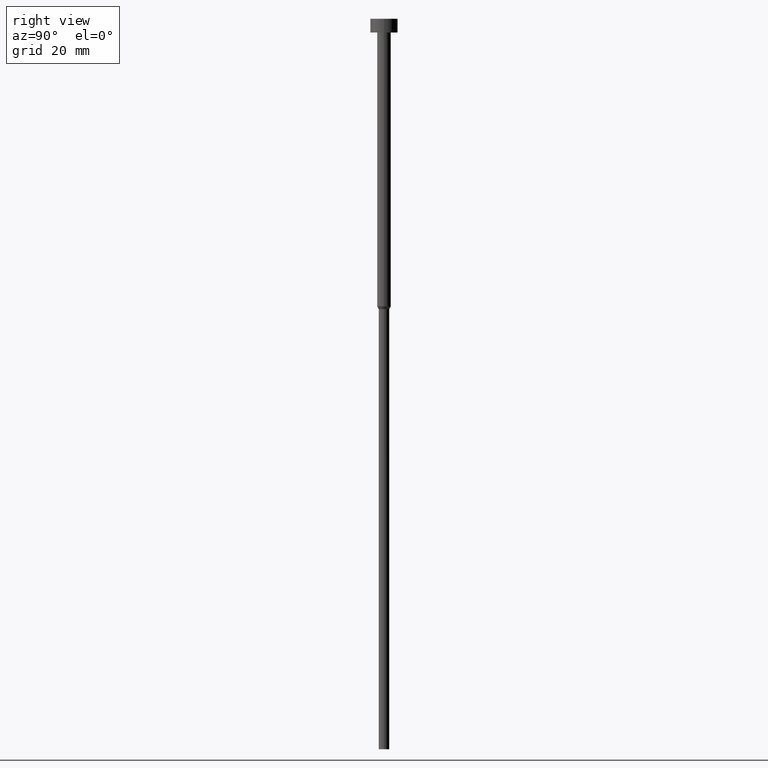
[diagram: clean part render]
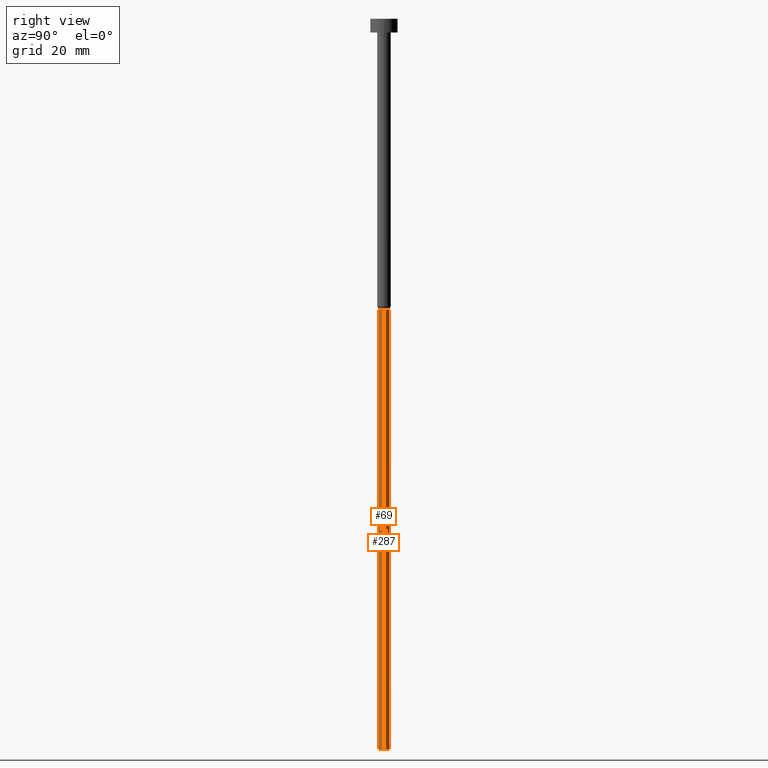
[diagram: same view with one multi-face feature highlighted, each face labeled with its STEP entity id]
A machine part, right view. The highlighted faces form ONE feature: a constant-radius fillet chain: 2 tangent blend faces with common blend radius 1.15 mm. The faces share edges in the B-rep.
Their STEP definitions:
[1] entity #69 (Cylinder):
#13 = CARTESIAN_POINT ( 'NONE',  ( 1.149999999999999911, 0.000000000000000000, -63.60621778264910375 ) ) ;
#28 = AXIS2_PLACEMENT_3D ( 'NONE', #97, #207, #41 ) ;
#32 = EDGE_CURVE ( 'NONE', #319, #272, #56, .T. ) ;
#36 = DIRECTION ( 'NONE',  ( -0.000000000000000000, -0.000000000000000000, 1.000000000000000000 ) ) ;
#41 = DIRECTION ( 'NONE',  ( 1.000000000000000000, 0.000000000000000000, 0.000000000000000000 ) ) ;
#51 = EDGE_LOOP ( 'NONE', ( #183, #303, #136, #263 ) ) ;
#56 = LINE ( 'NONE', #302, #60 ) ;
#59 = DIRECTION ( 'NONE',  ( -0.000000000000000000, -0.000000000000000000, 1.000000000000000000 ) ) ;
#60 = VECTOR ( 'NONE', #59, 1000.000000000000000 ) ;
#69 = ADVANCED_FACE ( 'NONE', ( #237 ), #120, .T. ) ;
#71 = DIRECTION ( 'NONE',  ( -0.000000000000000000, -0.000000000000000000, 1.000000000000000000 ) ) ;
#86 = VECTOR ( 'NONE', #101, 1000.000000000000000 ) ;
#94 = CARTESIAN_POINT ( 'NONE',  ( -1.149999999999999911, 1.408343819019456028E-16, -160.0000000000000000 ) ) ;
#97 = CARTESIAN_POINT ( 'NONE',  ( 0.000000000000000000, 0.000000000000000000, -160.0000000000000000 ) ) ;
#99 = DIRECTION ( 'NONE',  ( 1.000000000000000000, 0.000000000000000000, 0.000000000000000000 ) ) ;
#101 = DIRECTION ( 'NONE',  ( -0.000000000000000000, -0.000000000000000000, 1.000000000000000000 ) ) ;
#119 = AXIS2_PLACEMENT_3D ( 'NONE', #185, #71, #192 ) ;
#120 = CYLINDRICAL_SURFACE ( 'NONE', #168, 1.149999999999999911 ) ;
#136 = ORIENTED_EDGE ( 'NONE', *, *, #32, .T. ) ;
#155 = CARTESIAN_POINT ( 'NONE',  ( 1.149999999999999911, 0.000000000000000000, -160.0000000000000000 ) ) ;
#168 = AXIS2_PLACEMENT_3D ( 'NONE', #176, #36, #99 ) ;
#176 = CARTESIAN_POINT ( 'NONE',  ( 0.000000000000000000, 0.000000000000000000, 0.000000000000000000 ) ) ;
#183 = ORIENTED_EDGE ( 'NONE', *, *, #277, .F. ) ;
#185 = CARTESIAN_POINT ( 'NONE',  ( 0.000000000000000000, 0.000000000000000000, -63.60621778264910375 ) ) ;
#192 = DIRECTION ( 'NONE',  ( 1.000000000000000000, 0.000000000000000000, 0.000000000000000000 ) ) ;
#193 = VERTEX_POINT ( 'NONE', #94 ) ;
#201 = VERTEX_POINT ( 'NONE', #339 ) ;
#206 = CIRCLE ( 'NONE', #28, 1.149999999999999911 ) ;
#207 = DIRECTION ( 'NONE',  ( -0.000000000000000000, -0.000000000000000000, 1.000000000000000000 ) ) ;
#237 = FACE_OUTER_BOUND ( 'NONE', #51, .T. ) ;
#240 = EDGE_CURVE ( 'NONE', #193, #319, #206, .T. ) ;
#246 = CARTESIAN_POINT ( 'NONE',  ( -1.149999999999999911, 1.408343819019456028E-16, 0.000000000000000000 ) ) ;
#263 = ORIENTED_EDGE ( 'NONE', *, *, #304, .F. ) ;
#272 = VERTEX_POINT ( 'NONE', #13 ) ;
#277 = EDGE_CURVE ( 'NONE', #193, #201, #345, .T. ) ;
#279 = CIRCLE ( 'NONE', #119, 1.149999999999999911 ) ;
#302 = CARTESIAN_POINT ( 'NONE',  ( 1.149999999999999911, 0.000000000000000000, 0.000000000000000000 ) ) ;
#303 = ORIENTED_EDGE ( 'NONE', *, *, #240, .T. ) ;
#304 = EDGE_CURVE ( 'NONE', #201, #272, #279, .T. ) ;
#319 = VERTEX_POINT ( 'NONE', #155 ) ;
#339 = CARTESIAN_POINT ( 'NONE',  ( -1.149999999999999911, 1.408343819019456028E-16, -63.60621778264910375 ) ) ;
#345 = LINE ( 'NONE', #246, #86 ) ;
[2] entity #287 (Cylinder):
#7 = DIRECTION ( 'NONE',  ( -0.000000000000000000, -0.000000000000000000, 1.000000000000000000 ) ) ;
#9 = AXIS2_PLACEMENT_3D ( 'NONE', #25, #326, #198 ) ;
#13 = CARTESIAN_POINT ( 'NONE',  ( 1.149999999999999911, 0.000000000000000000, -63.60621778264910375 ) ) ;
#24 = EDGE_CURVE ( 'NONE', #319, #193, #273, .T. ) ;
#25 = CARTESIAN_POINT ( 'NONE',  ( 0.000000000000000000, 0.000000000000000000, -160.0000000000000000 ) ) ;
#31 = DIRECTION ( 'NONE',  ( 1.000000000000000000, 0.000000000000000000, 0.000000000000000000 ) ) ;
#32 = EDGE_CURVE ( 'NONE', #319, #272, #56, .T. ) ;
#46 = AXIS2_PLACEMENT_3D ( 'NONE', #103, #286, #288 ) ;
#56 = LINE ( 'NONE', #302, #60 ) ;
#59 = DIRECTION ( 'NONE',  ( -0.000000000000000000, -0.000000000000000000, 1.000000000000000000 ) ) ;
#60 = VECTOR ( 'NONE', #59, 1000.000000000000000 ) ;
#84 = ORIENTED_EDGE ( 'NONE', *, *, #32, .F. ) ;
#86 = VECTOR ( 'NONE', #101, 1000.000000000000000 ) ;
#94 = CARTESIAN_POINT ( 'NONE',  ( -1.149999999999999911, 1.408343819019456028E-16, -160.0000000000000000 ) ) ;
#101 = DIRECTION ( 'NONE',  ( -0.000000000000000000, -0.000000000000000000, 1.000000000000000000 ) ) ;
#103 = CARTESIAN_POINT ( 'NONE',  ( 0.000000000000000000, 0.000000000000000000, 0.000000000000000000 ) ) ;
#106 = EDGE_CURVE ( 'NONE', #272, #201, #337, .T. ) ;
#107 = CYLINDRICAL_SURFACE ( 'NONE', #46, 1.149999999999999911 ) ;
#133 = FACE_OUTER_BOUND ( 'NONE', #346, .T. ) ;
#155 = CARTESIAN_POINT ( 'NONE',  ( 1.149999999999999911, 0.000000000000000000, -160.0000000000000000 ) ) ;
#157 = ORIENTED_EDGE ( 'NONE', *, *, #277, .T. ) ;
#193 = VERTEX_POINT ( 'NONE', #94 ) ;
#198 = DIRECTION ( 'NONE',  ( 1.000000000000000000, 0.000000000000000000, 0.000000000000000000 ) ) ;
#201 = VERTEX_POINT ( 'NONE', #339 ) ;
#202 = CARTESIAN_POINT ( 'NONE',  ( 0.000000000000000000, 0.000000000000000000, -63.60621778264910375 ) ) ;
#214 = ORIENTED_EDGE ( 'NONE', *, *, #106, .F. ) ;
#218 = ORIENTED_EDGE ( 'NONE', *, *, #24, .T. ) ;
#246 = CARTESIAN_POINT ( 'NONE',  ( -1.149999999999999911, 1.408343819019456028E-16, 0.000000000000000000 ) ) ;
#272 = VERTEX_POINT ( 'NONE', #13 ) ;
#273 = CIRCLE ( 'NONE', #9, 1.149999999999999911 ) ;
#277 = EDGE_CURVE ( 'NONE', #193, #201, #345, .T. ) ;
#286 = DIRECTION ( 'NONE',  ( -0.000000000000000000, -0.000000000000000000, 1.000000000000000000 ) ) ;
#287 = ADVANCED_FACE ( 'NONE', ( #133 ), #107, .T. ) ;
#288 = DIRECTION ( 'NONE',  ( 1.000000000000000000, 0.000000000000000000, 0.000000000000000000 ) ) ;
#302 = CARTESIAN_POINT ( 'NONE',  ( 1.149999999999999911, 0.000000000000000000, 0.000000000000000000 ) ) ;
#308 = AXIS2_PLACEMENT_3D ( 'NONE', #202, #7, #31 ) ;
#319 = VERTEX_POINT ( 'NONE', #155 ) ;
#326 = DIRECTION ( 'NONE',  ( -0.000000000000000000, -0.000000000000000000, 1.000000000000000000 ) ) ;
#337 = CIRCLE ( 'NONE', #308, 1.149999999999999911 ) ;
#339 = CARTESIAN_POINT ( 'NONE',  ( -1.149999999999999911, 1.408343819019456028E-16, -63.60621778264910375 ) ) ;
#345 = LINE ( 'NONE', #246, #86 ) ;
#346 = EDGE_LOOP ( 'NONE', ( #218, #157, #214, #84 ) ) ;